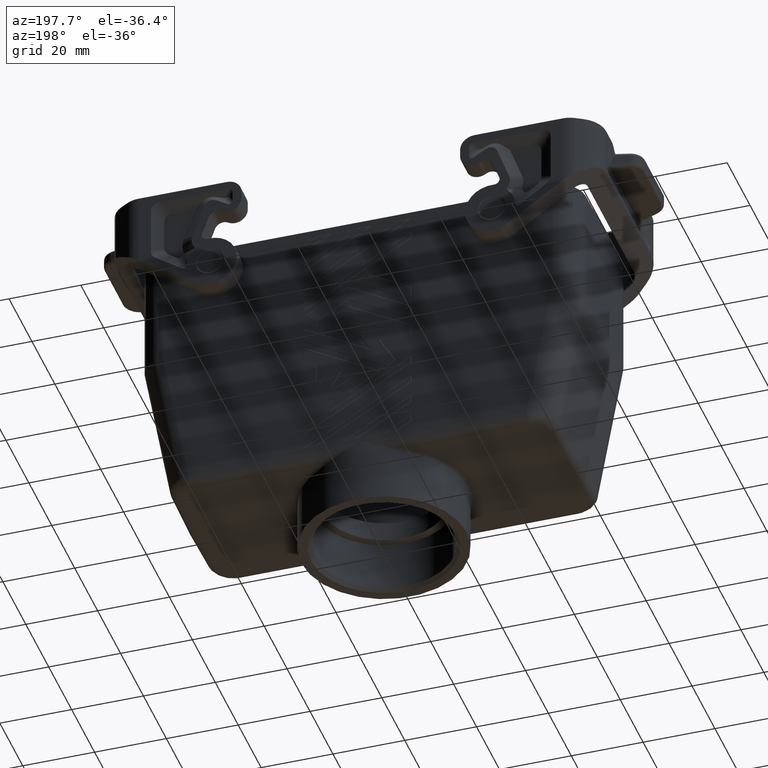
[diagram: clean part render]
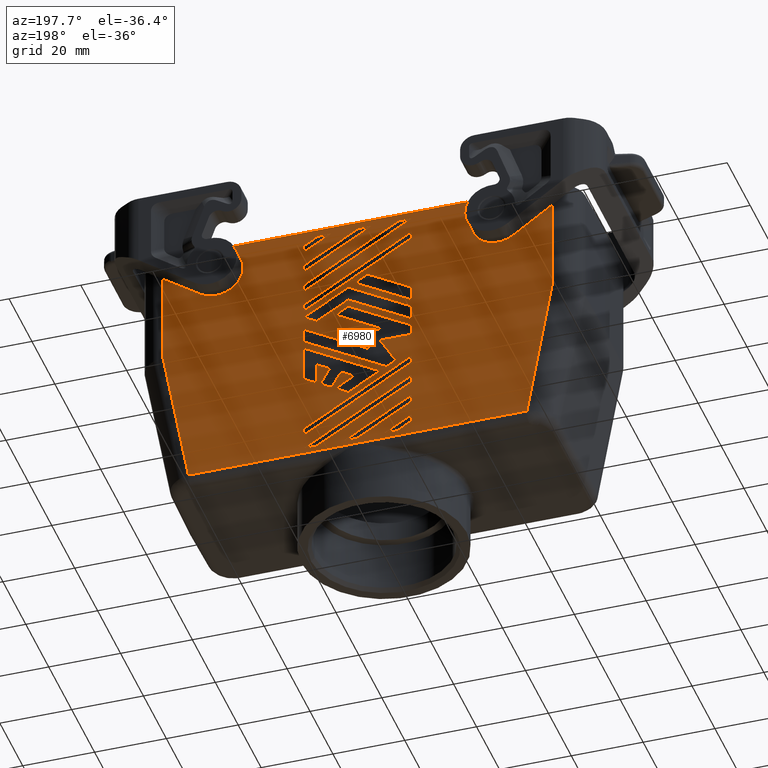
[diagram: same view with one face highlighted and labeled with its STEP entity id]
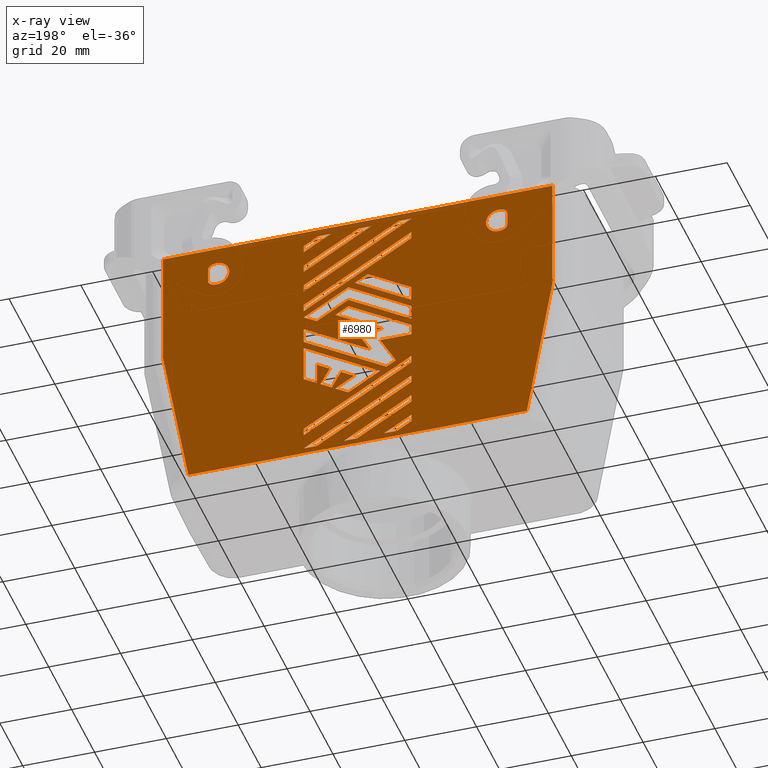
[diagram: x-ray of the same camera — body ghosted, the highlighted face saturated]
A machine part, auxiliary view. The second image highlights one B-rep face of the part: STEP entity #6980.
The next image is the same camera in x-ray: the body ghosted, the highlighted face saturated — about 0% of this face is hidden behind the body in this view.
In plain terms, the highlighted planar face has unit normal (0, 1, 0).
Its self-contained STEP definition (entity closure, byte-faithful):
#10=CARTESIAN_POINT('',(-46.060861035122,64.667153,-23.));
#20=DIRECTION('',(0.,0.,-1.));
#30=DIRECTION('',(-1.,0.,0.));
#40=AXIS2_PLACEMENT_3D('',#10,#20,#30);
#50=PLANE('',#40);
#60=CARTESIAN_POINT('',(45.6034979824379,71.0426686568409,-23.));
#70=DIRECTION('',(-0.866025403784436,0.500000000000004,0.));
#80=VECTOR('',#70,1.);
#90=LINE('',#60,#80);
#100=CARTESIAN_POINT('',(12.2534979824391,90.2973001343145,-23.));
#110=VERTEX_POINT('',#100);
#120=CARTESIAN_POINT('',(4.65349798243921,94.6851621801556,-23.));
#130=VERTEX_POINT('',#120);
#140=EDGE_CURVE('',#110,#130,#90,.T.);
#150=ORIENTED_EDGE('',*,*,#140,.F.);
#160=CARTESIAN_POINT('',(45.6034979824379,94.6851621801556,-23.));
#170=DIRECTION('',(-1.,0.,0.));
#180=VECTOR('',#170,1.);
#190=LINE('',#160,#180);
#200=CARTESIAN_POINT('',(8.25349798243925,94.6851621801557,-23.));
#210=VERTEX_POINT('',#200);
#220=EDGE_CURVE('',#210,#130,#190,.T.);
#230=ORIENTED_EDGE('',*,*,#220,.T.);
#240=CARTESIAN_POINT('',(45.6034979824379,73.1211296259237,-23.));
#250=DIRECTION('',(0.866025403784437,-0.500000000000004,0.));
#260=VECTOR('',#250,1.);
#270=LINE('',#240,#260);
#280=CARTESIAN_POINT('',(12.2534979824391,92.3757611033972,-23.));
#290=VERTEX_POINT('',#280);
#300=EDGE_CURVE('',#210,#290,#270,.T.);
#310=ORIENTED_EDGE('',*,*,#300,.F.);
#320=CARTESIAN_POINT('',(12.2534979824391,55.8098842073269,-23.));
#330=DIRECTION('',(0.,1.,0.));
#340=VECTOR('',#330,1.);
#350=LINE('',#320,#340);
#360=EDGE_CURVE('',#110,#290,#350,.T.);
#370=ORIENTED_EDGE('',*,*,#360,.T.);
#380=EDGE_LOOP('',(#370,#310,#230,#150));
#390=FACE_BOUND('',#380,.T.);
#400=CARTESIAN_POINT('',(45.6034979824379,25.6340699850763,-23.));
#410=DIRECTION('',(1.,0.,0.));
#420=VECTOR('',#410,1.);
#430=LINE('',#400,#420);
#440=CARTESIAN_POINT('',(8.65349798243908,25.6340699850763,-23.));
#450=VERTEX_POINT('',#440);
#460=CARTESIAN_POINT('',(12.253497982439,25.6340699850763,-23.));
#470=VERTEX_POINT('',#460);
#480=EDGE_CURVE('',#450,#470,#430,.T.);
#490=ORIENTED_EDGE('',*,*,#480,.T.);
#500=CARTESIAN_POINT('',(45.6034979824379,4.30097753852019,-23.));
#510=DIRECTION('',(-0.866025403784437,0.500000000000002,0.));
#520=VECTOR('',#510,1.);
#530=LINE('',#500,#520);
#540=CARTESIAN_POINT('',(-17.7465020175611,40.8761170916827,-23.));
#550=VERTEX_POINT('',#540);
#560=EDGE_CURVE('',#450,#550,#530,.T.);
#570=ORIENTED_EDGE('',*,*,#560,.F.);
#580=CARTESIAN_POINT('',(-17.7465020175611,55.8098842073269,-23.));
#590=DIRECTION('',(0.,-1.,0.));
#600=VECTOR('',#590,1.);
#610=LINE('',#580,#600);
#620=CARTESIAN_POINT('',(-17.7465020175611,42.9545780607653,-23.));
#630=VERTEX_POINT('',#620);
#640=EDGE_CURVE('',#630,#550,#610,.T.);
#650=ORIENTED_EDGE('',*,*,#640,.T.);
#660=CARTESIAN_POINT('',(45.6034979824379,6.37943850760283,-23.));
#670=DIRECTION('',(0.866025403784437,-0.500000000000003,0.));
#680=VECTOR('',#670,1.);
#690=LINE('',#660,#680);
#700=EDGE_CURVE('',#630,#470,#690,.T.);
#710=ORIENTED_EDGE('',*,*,#700,.F.);
#720=EDGE_LOOP('',(#710,#650,#570,#490));
#730=FACE_BOUND('',#720,.T.);
#740=CARTESIAN_POINT('',(45.6034979824379,79.9915978292796,-23.));
#750=DIRECTION('',(-0.866025403784434,-0.500000000000008,0.));
#760=VECTOR('',#750,1.);
#770=LINE('',#740,#760);
#780=CARTESIAN_POINT('',(12.2534979824392,60.7369663518059,-23.));
#790=VERTEX_POINT('',#780);
#800=CARTESIAN_POINT('',(-5.34650201756084,50.5756016140682,-23.));
#810=VERTEX_POINT('',#800);
#820=EDGE_CURVE('',#790,#810,#770,.T.);
#830=ORIENTED_EDGE('',*,*,#820,.F.);
#840=CARTESIAN_POINT('',(45.6034979824379,21.1596053988555,-23.));
#850=DIRECTION('',(-0.866025403784424,0.500000000000025,0.));
#860=VECTOR('',#850,1.);
#870=LINE('',#840,#860);
#880=CARTESIAN_POINT('',(-8.94650201756087,52.654062583151,-23.));
#890=VERTEX_POINT('',#880);
#900=EDGE_CURVE('',#810,#890,#870,.T.);
#910=ORIENTED_EDGE('',*,*,#900,.F.);
#920=CARTESIAN_POINT('',(45.6034979824379,84.1485197674442,-23.));
#930=DIRECTION('',(0.86602540378444,0.499999999999999,0.));
#940=VECTOR('',#930,1.);
#950=LINE('',#920,#940);
#960=CARTESIAN_POINT('',(4.05349798243933,60.1596160826162,-23.));
#970=VERTEX_POINT('',#960);
#980=EDGE_CURVE('',#890,#970,#950,.T.);
#990=ORIENTED_EDGE('',*,*,#980,.F.);
#1000=CARTESIAN_POINT('',(45.6034979824379,60.1596160826162,-23.));
#1010=DIRECTION('',(-1.,-1.04491578788246E-15,0.));
#1020=VECTOR('',#1010,1.);
#1030=LINE('',#1000,#1020);
#1040=CARTESIAN_POINT('',(-2.74650201756093,60.1596160826162,-23.));
#1050=VERTEX_POINT('',#1040);
#1060=EDGE_CURVE('',#970,#1050,#1030,.T.);
#1070=ORIENTED_EDGE('',*,*,#1060,.F.);
#1080=CARTESIAN_POINT('',(-5.25782088666189,55.8098842073269,-23.));
#1090=DIRECTION('',(0.499999999999997,0.86602540378444,0.));
#1100=VECTOR('',#1090,1.);
#1110=LINE('',#1080,#1100);
#1120=CARTESIAN_POINT('',(0.653497982439163,66.0485888283506,-23.));
#1130=VERTEX_POINT('',#1120);
#1140=EDGE_CURVE('',#1050,#1130,#1110,.T.);
#1150=ORIENTED_EDGE('',*,*,#1140,.F.);
#1160=CARTESIAN_POINT('',(45.6034979824379,92.0004834284237,-23.));
#1170=DIRECTION('',(-0.866025403784438,-0.500000000000001,0.));
#1180=VECTOR('',#1170,1.);
#1190=LINE('',#1160,#1180);
#1200=CARTESIAN_POINT('',(-17.746502017561,55.4253438752614,-23.));
#1210=VERTEX_POINT('',#1200);
#1220=EDGE_CURVE('',#1130,#1210,#1190,.T.);
#1230=ORIENTED_EDGE('',*,*,#1220,.F.);
#1240=CARTESIAN_POINT('',(-17.746502017561,55.8098842073269,-23.));
#1250=DIRECTION('',(0.,-1.,0.));
#1260=VECTOR('',#1250,1.);
#1270=LINE('',#1240,#1260);
#1280=CARTESIAN_POINT('',(-17.746502017561,59.5822658134266,-23.));
#1290=VERTEX_POINT('',#1280);
#1300=EDGE_CURVE('',#1290,#1210,#1270,.T.);
#1310=ORIENTED_EDGE('',*,*,#1300,.T.);
#1320=CARTESIAN_POINT('',(45.6034979824379,96.1574053665885,-23.));
#1330=DIRECTION('',(0.86602540378444,0.499999999999997,0.));
#1340=VECTOR('',#1330,1.);
#1350=LINE('',#1320,#1340);
#1360=CARTESIAN_POINT('',(5.25349798243919,72.861322004788,-23.));
#1370=VERTEX_POINT('',#1360);
#1380=EDGE_CURVE('',#1290,#1370,#1350,.T.);
#1390=ORIENTED_EDGE('',*,*,#1380,.F.);
#1400=CARTESIAN_POINT('',(45.6034979824379,49.5652386429886,-23.));
#1410=DIRECTION('',(0.866025403784451,-0.499999999999979,0.));
#1420=VECTOR('',#1410,1.);
#1430=LINE('',#1400,#1420);
#1440=CARTESIAN_POINT('',(7.87118943606306,71.349997139383,-23.));
#1450=VERTEX_POINT('',#1440);
#1460=EDGE_CURVE('',#1370,#1450,#1430,.T.);
#1470=ORIENTED_EDGE('',*,*,#1460,.F.);
#1480=CARTESIAN_POINT('',(-1.10089894849622,55.8098842073269,-23.));
#1490=DIRECTION('',(-0.499999999999979,-0.866025403784451,0.));
#1500=VECTOR('',#1490,1.);
#1510=LINE('',#1480,#1500);
#1520=CARTESIAN_POINT('',(3.48888088968715,63.7596160826162,-23.));
#1530=VERTEX_POINT('',#1520);
#1540=EDGE_CURVE('',#1450,#1530,#1510,.T.);
#1550=ORIENTED_EDGE('',*,*,#1540,.F.);
#1560=CARTESIAN_POINT('',(45.6034979824379,63.7596160826162,-23.));
#1570=DIRECTION('',(1.,0.,0.));
#1580=VECTOR('',#1570,1.);
#1590=LINE('',#1560,#1580);
#1600=CARTESIAN_POINT('',(12.2534979824392,63.7596160826162,-23.));
#1610=VERTEX_POINT('',#1600);
#1620=EDGE_CURVE('',#1530,#1610,#1590,.T.);
#1630=ORIENTED_EDGE('',*,*,#1620,.F.);
#1640=CARTESIAN_POINT('',(12.2534979824392,55.8098842073269,-23.));
#1650=DIRECTION('',(0.,1.,0.));
#1660=VECTOR('',#1650,1.);
#1670=LINE('',#1640,#1660);
#1680=EDGE_CURVE('',#790,#1610,#1670,.T.);
#1690=ORIENTED_EDGE('',*,*,#1680,.T.);
#1700=EDGE_LOOP('',(#1690,#1630,#1550,#1470,#1390,#1310,#1230,#1150,
#1070,#990,#910,#830));
#1710=FACE_BOUND('',#1700,.T.);
#1720=CARTESIAN_POINT('',(45.6034979824379,94.6851621801556,-23.));
#1730=DIRECTION('',(-1.,0.,0.));
#1740=VECTOR('',#1730,1.);
#1750=LINE('',#1720,#1740);
#1760=CARTESIAN_POINT('',(-2.94650201756095,94.6851621801556,-23.));
#1770=VERTEX_POINT('',#1760);
#1780=CARTESIAN_POINT('',(-6.5465020175612,94.6851621801556,-23.));
#1790=VERTEX_POINT('',#1780);
#1800=EDGE_CURVE('',#1770,#1790,#1750,.T.);
#1810=ORIENTED_EDGE('',*,*,#1800,.T.);
#1820=CARTESIAN_POINT('',(45.6034979824379,66.6548066109999,-23.));
#1830=DIRECTION('',(0.866025403784438,-0.500000000000001,0.));
#1840=VECTOR('',#1830,1.);
#1850=LINE('',#1820,#1840);
#1860=CARTESIAN_POINT('',(12.2534979824391,85.9094380884733,-23.));
#1870=VERTEX_POINT('',#1860);
#1880=EDGE_CURVE('',#1770,#1870,#1850,.T.);
#1890=ORIENTED_EDGE('',*,*,#1880,.F.);
#1900=CARTESIAN_POINT('',(12.2534979824391,55.8098842073269,-23.));
#1910=DIRECTION('',(0.,1.,0.));
#1920=VECTOR('',#1910,1.);
#1930=LINE('',#1900,#1920);
#1940=CARTESIAN_POINT('',(12.2534979824391,83.8309771193906,-23.));
#1950=VERTEX_POINT('',#1940);
#1960=EDGE_CURVE('',#1950,#1870,#1930,.T.);
#1970=ORIENTED_EDGE('',*,*,#1960,.T.);
#1980=CARTESIAN_POINT('',(45.6034979824379,64.5763456419175,-23.));
#1990=DIRECTION('',(-0.866025403784441,0.499999999999996,0.));
#2000=VECTOR('',#1990,1.);
#2010=LINE('',#1980,#2000);
#2020=EDGE_CURVE('',#1950,#1790,#2010,.T.);
#2030=ORIENTED_EDGE('',*,*,#2020,.F.);
#2040=EDGE_LOOP('',(#2030,#1970,#1890,#1810));
#2050=FACE_BOUND('',#2040,.T.);
#2060=CARTESIAN_POINT('',(-17.746502017561,55.8098842073269,-23.));
#2070=DIRECTION('',(0.,-1.,0.));
#2080=VECTOR('',#2070,1.);
#2090=LINE('',#2060,#2080);
#2100=CARTESIAN_POINT('',(-17.746502017561,49.4209010756891,-23.));
#2110=VERTEX_POINT('',#2100);
#2120=CARTESIAN_POINT('',(-17.746502017561,47.3424401066064,-23.));
#2130=VERTEX_POINT('',#2120);
#2140=EDGE_CURVE('',#2110,#2130,#2090,.T.);
#2150=ORIENTED_EDGE('',*,*,#2140,.T.);
#2160=CARTESIAN_POINT('',(45.6034979824379,12.8457615225267,-23.));
#2170=DIRECTION('',(0.866025403784437,-0.500000000000002,0.));
#2180=VECTOR('',#2170,1.);
#2190=LINE('',#2160,#2180);
#2200=CARTESIAN_POINT('',(12.2534979824393,32.100393,-23.));
#2210=VERTEX_POINT('',#2200);
#2220=EDGE_CURVE('',#2110,#2210,#2190,.T.);
#2230=ORIENTED_EDGE('',*,*,#2220,.F.);
#2240=CARTESIAN_POINT('',(12.2534979824393,55.8098842073269,-23.));
#2250=DIRECTION('',(0.,1.,0.));
#2260=VECTOR('',#2250,1.);
#2270=LINE('',#2240,#2260);
#2280=CARTESIAN_POINT('',(12.2534979824393,30.0219320309173,-23.));
#2290=VERTEX_POINT('',#2280);
#2300=EDGE_CURVE('',#2290,#2210,#2270,.T.);
#2310=ORIENTED_EDGE('',*,*,#2300,.T.);
#2320=CARTESIAN_POINT('',(45.6034979824379,10.767300553444,-23.));
#2330=DIRECTION('',(-0.866025403784437,0.500000000000002,0.));
#2340=VECTOR('',#2330,1.);
#2350=LINE('',#2320,#2340);
#2360=EDGE_CURVE('',#2290,#2130,#2350,.T.);
#2370=ORIENTED_EDGE('',*,*,#2360,.F.);
#2380=EDGE_LOOP('',(#2370,#2310,#2230,#2150));
#2390=FACE_BOUND('',#2380,.T.);
#2400=CARTESIAN_POINT('',(45.6034979824379,53.7221605811523,-23.));
#2410=DIRECTION('',(0.866025403784439,-0.5,0.));
#2420=VECTOR('',#2410,1.);
#2430=LINE('',#2400,#2420);
#2440=CARTESIAN_POINT('',(-17.746502017561,90.2973001343145,-23.));
#2450=VERTEX_POINT('',#2440);
#2460=CARTESIAN_POINT('',(12.2534979824391,72.9767920586256,-23.));
#2470=VERTEX_POINT('',#2460);
#2480=EDGE_CURVE('',#2450,#2470,#2430,.T.);
#2490=ORIENTED_EDGE('',*,*,#2480,.F.);
#2500=CARTESIAN_POINT('',(12.2534979824392,55.8098842073269,-23.));
#2510=DIRECTION('',(0.,1.,0.));
#2520=VECTOR('',#2510,1.);
#2530=LINE('',#2500,#2520);
#2540=CARTESIAN_POINT('',(12.2534979824392,70.898331089543,-23.));
#2550=VERTEX_POINT('',#2540);
#2560=EDGE_CURVE('',#2550,#2470,#2530,.T.);
#2570=ORIENTED_EDGE('',*,*,#2560,.T.);
#2580=CARTESIAN_POINT('',(45.6034979824379,51.6436996120697,-23.));
#2590=DIRECTION('',(-0.866025403784439,0.5,0.));
#2600=VECTOR('',#2590,1.);
#2610=LINE('',#2580,#2600);
#2620=CARTESIAN_POINT('',(-17.7465020175609,88.2188391652318,-23.));
#2630=VERTEX_POINT('',#2620);
#2640=EDGE_CURVE('',#2550,#2630,#2610,.T.);
#2650=ORIENTED_EDGE('',*,*,#2640,.F.);
#2660=CARTESIAN_POINT('',(-17.7465020175609,55.8098842073269,-23.));
#2670=DIRECTION('',(0.,-1.,0.));
#2680=VECTOR('',#2670,1.);
#2690=LINE('',#2660,#2680);
#2700=EDGE_CURVE('',#2450,#2630,#2690,.T.);
#2710=ORIENTED_EDGE('',*,*,#2700,.T.);
#2720=EDGE_LOOP('',(#2710,#2650,#2570,#2490));
#2730=FACE_BOUND('',#2720,.T.);
#2740=CARTESIAN_POINT('',(45.6034979824379,108.397231073403,-23.));
#2750=DIRECTION('',(0.866025403784471,0.499999999999945,0.));
#2760=VECTOR('',#2750,1.);
#2770=LINE('',#2740,#2760);
#2780=CARTESIAN_POINT('',(-17.746502017561,71.8220915202466,-23.));
#2790=VERTEX_POINT('',#2780);
#2800=CARTESIAN_POINT('',(-14.1465020175609,73.900552489329,-23.));
#2810=VERTEX_POINT('',#2800);
#2820=EDGE_CURVE('',#2790,#2810,#2770,.T.);
#2830=ORIENTED_EDGE('',*,*,#2820,.F.);
#2840=CARTESIAN_POINT('',(-14.146502017561,55.8098842073269,-23.));
#2850=DIRECTION('',(-1.47920206644892E-15,-1.,0.));
#2860=VECTOR('',#2850,1.);
#2870=LINE('',#2840,#2860);
#2880=CARTESIAN_POINT('',(-14.1465020175609,67.896109689757,-23.));
#2890=VERTEX_POINT('',#2880);
#2900=EDGE_CURVE('',#2810,#2890,#2870,.T.);
#2910=ORIENTED_EDGE('',*,*,#2900,.F.);
#2920=CARTESIAN_POINT('',(45.6034979824379,102.392788273836,-23.));
#2930=DIRECTION('',(0.866025403784439,0.499999999999999,0.));
#2940=VECTOR('',#2930,1.);
#2950=LINE('',#2920,#2940);
#2960=CARTESIAN_POINT('',(-10.5053477443729,69.998331089543,-23.));
#2970=VERTEX_POINT('',#2960);
#2980=EDGE_CURVE('',#2890,#2970,#2950,.T.);
#2990=ORIENTED_EDGE('',*,*,#2980,.F.);
#3000=CARTESIAN_POINT('',(-2.31364411754294,55.8098842073269,-23.));
#3010=DIRECTION('',(-0.49999999999999,0.866025403784444,0.));
#3020=VECTOR('',#3010,1.);
#3030=LINE('',#3000,#3020);
#3040=CARTESIAN_POINT('',(-13.1053477443728,74.501663189222,-23.));
#3050=VERTEX_POINT('',#3040);
#3060=EDGE_CURVE('',#2970,#3050,#3030,.T.);
#3070=ORIENTED_EDGE('',*,*,#3060,.F.);
#3080=CARTESIAN_POINT('',(45.6034979824379,108.397231073403,-23.));
#3090=DIRECTION('',(0.866025403784471,0.499999999999945,0.));
#3100=VECTOR('',#3090,1.);
#3110=LINE('',#3080,#3100);
#3120=CARTESIAN_POINT('',(-9.9876562907487,76.3016631892218,-23.));
#3130=VERTEX_POINT('',#3120);
#3140=EDGE_CURVE('',#3050,#3130,#3110,.T.);
#3150=ORIENTED_EDGE('',*,*,#3140,.F.);
#3160=CARTESIAN_POINT('',(1.84327782062226,55.8098842073269,-23.));
#3170=DIRECTION('',(0.499999999999988,-0.866025403784445,0.));
#3180=VECTOR('',#3170,1.);
#3190=LINE('',#3160,#3180);
#3200=CARTESIAN_POINT('',(-7.38765629074896,71.798331089543,-23.));
#3210=VERTEX_POINT('',#3200);
#3220=EDGE_CURVE('',#3130,#3210,#3190,.T.);
#3230=ORIENTED_EDGE('',*,*,#3220,.F.);
#3240=CARTESIAN_POINT('',(45.6034979824379,102.392788273836,-23.));
#3250=DIRECTION('',(0.866025403784439,0.499999999999999,0.));
#3260=VECTOR('',#3250,1.);
#3270=LINE('',#3240,#3260);
#3280=CARTESIAN_POINT('',(-3.74650201756063,73.9005524893292,-23.));
#3290=VERTEX_POINT('',#3280);
#3300=EDGE_CURVE('',#3210,#3290,#3270,.T.);
#3310=ORIENTED_EDGE('',*,*,#3300,.F.);
#3320=CARTESIAN_POINT('',(45.6034979824379,45.4083167048229,-23.));
#3330=DIRECTION('',(-0.866025403784445,0.499999999999989,0.));
#3340=VECTOR('',#3330,1.);
#3350=LINE('',#3320,#3340);
#3360=CARTESIAN_POINT('',(-8.94650201756025,76.902773889115,-23.));
#3370=VERTEX_POINT('',#3360);
#3380=EDGE_CURVE('',#3290,#3370,#3350,.T.);
#3390=ORIENTED_EDGE('',*,*,#3380,.F.);
#3400=CARTESIAN_POINT('',(45.6034979824379,108.397231073403,-23.));
#3410=DIRECTION('',(0.866025403784471,0.499999999999945,0.));
#3420=VECTOR('',#3410,1.);
#3430=LINE('',#3400,#3420);
#3440=CARTESIAN_POINT('',(-5.3465020175602,78.9812348581974,-23.));
#3450=VERTEX_POINT('',#3440);
#3460=EDGE_CURVE('',#3370,#3450,#3430,.T.);
#3470=ORIENTED_EDGE('',*,*,#3460,.F.);
#3480=CARTESIAN_POINT('',(45.6034979824379,49.5652386429886,-23.));
#3490=DIRECTION('',(0.866025403784451,-0.499999999999979,0.));
#3500=VECTOR('',#3490,1.);
#3510=LINE('',#3480,#3500);
#3520=CARTESIAN_POINT('',(3.45349798243895,73.9005524893294,-23.));
#3530=VERTEX_POINT('',#3520);
#3540=EDGE_CURVE('',#3450,#3530,#3510,.T.);
#3550=ORIENTED_EDGE('',*,*,#3540,.F.);
#3560=CARTESIAN_POINT('',(45.6034979824379,98.2358663356725,-23.));
#3570=DIRECTION('',(-0.86602540378443,-0.500000000000014,0.));
#3580=VECTOR('',#3570,1.);
#3590=LINE('',#3560,#3580);
#3600=CARTESIAN_POINT('',(-17.746502017561,61.6607267825089,-23.));
#3610=VERTEX_POINT('',#3600);
#3620=EDGE_CURVE('',#3530,#3610,#3590,.T.);
#3630=ORIENTED_EDGE('',*,*,#3620,.F.);
#3640=CARTESIAN_POINT('',(-17.746502017561,55.8098842073269,-23.));
#3650=DIRECTION('',(0.,-1.,0.));
#3660=VECTOR('',#3650,1.);
#3670=LINE('',#3640,#3660);
#3680=EDGE_CURVE('',#2790,#3610,#3670,.T.);
#3690=ORIENTED_EDGE('',*,*,#3680,.T.);
#3700=EDGE_LOOP('',(#3690,#3630,#3550,#3470,#3390,#3310,#3230,#3150,
#3070,#2990,#2910,#2830));
#3710=FACE_BOUND('',#3700,.T.);
#3720=CARTESIAN_POINT('',(45.6034979824379,-2.16534547640369,-23.));
#3730=DIRECTION('',(-0.866025403784437,0.500000000000003,0.));
#3740=VECTOR('',#3730,1.);
#3750=LINE('',#3720,#3740);
#3760=CARTESIAN_POINT('',(-2.5465020175609,25.6340699850763,-23.));
#3770=VERTEX_POINT('',#3760);
#3780=CARTESIAN_POINT('',(-17.7465020175611,34.4097940767588,-23.));
#3790=VERTEX_POINT('',#3780);
#3800=EDGE_CURVE('',#3770,#3790,#3750,.T.);
#3810=ORIENTED_EDGE('',*,*,#3800,.F.);
#3820=CARTESIAN_POINT('',(-17.7465020175611,55.8098842073269,-23.));
#3830=DIRECTION('',(0.,-1.,0.));
#3840=VECTOR('',#3830,1.);
#3850=LINE('',#3820,#3840);
#3860=CARTESIAN_POINT('',(-17.7465020175611,36.4882550458415,-23.));
#3870=VERTEX_POINT('',#3860);
#3880=EDGE_CURVE('',#3870,#3790,#3850,.T.);
#3890=ORIENTED_EDGE('',*,*,#3880,.T.);
#3900=CARTESIAN_POINT('',(45.6034979824379,-0.086884507320967,-23.));
#3910=DIRECTION('',(0.866025403784437,-0.500000000000002,0.));
#3920=VECTOR('',#3910,1.);
#3930=LINE('',#3900,#3920);
#3940=CARTESIAN_POINT('',(1.05349798243913,25.6340699850763,-23.));
#3950=VERTEX_POINT('',#3940);
#3960=EDGE_CURVE('',#3870,#3950,#3930,.T.);
#3970=ORIENTED_EDGE('',*,*,#3960,.F.);
#3980=CARTESIAN_POINT('',(45.6034979824379,25.6340699850763,-23.));
#3990=DIRECTION('',(1.,0.,0.));
#4000=VECTOR('',#3990,1.);
#4010=LINE('',#3980,#4000);
#4020=EDGE_CURVE('',#3770,#3950,#4010,.T.);
#4030=ORIENTED_EDGE('',*,*,#4020,.T.);
#4040=EDGE_LOOP('',(#4030,#3970,#3890,#3810));
#4050=FACE_BOUND('',#4040,.T.);
#4060=CARTESIAN_POINT('',(-42.8965020175609,33.4864501099492,-23.));
#4070=DIRECTION('',(0.,0.,1.));
#4080=DIRECTION('',(1.,0.,0.));
#4090=AXIS2_PLACEMENT_3D('',#4060,#4070,#4080);
#4100=CIRCLE('',#4090,1.5);
#4110=CARTESIAN_POINT('',(-43.5715020175609,34.825992942411,-23.));
#4120=VERTEX_POINT('',#4110);
#4130=CARTESIAN_POINT('',(-44.3965020175609,33.4864501099492,-23.));
#4140=VERTEX_POINT('',#4130);
#4150=EDGE_CURVE('',#4120,#4140,#4100,.T.);
#4160=ORIENTED_EDGE('',*,*,#4150,.T.);
#4170=CARTESIAN_POINT('',(-41.9965020175609,31.700393,-23.));
#4180=DIRECTION('',(0.,0.,1.));
#4190=DIRECTION('',(1.,1.22464679914735E-16,0.));
#4200=AXIS2_PLACEMENT_3D('',#4170,#4180,#4190);
#4210=CIRCLE('',#4200,3.5);
#4220=CARTESIAN_POINT('',(-38.4965020175609,31.700393,-23.));
#4230=VERTEX_POINT('',#4220);
#4240=EDGE_CURVE('',#4230,#4120,#4210,.T.);
#4250=ORIENTED_EDGE('',*,*,#4240,.T.);
#4260=CARTESIAN_POINT('',(-43.5715020175609,28.5747930575889,-23.));
#4270=VERTEX_POINT('',#4260);
#4280=EDGE_CURVE('',#4270,#4230,#4210,.T.);
#4290=ORIENTED_EDGE('',*,*,#4280,.T.);
#4300=CARTESIAN_POINT('',(-42.8965020175609,29.9143358900508,-23.));
#4310=DIRECTION('',(0.,0.,1.));
#4320=DIRECTION('',(1.,0.,0.));
#4330=AXIS2_PLACEMENT_3D('',#4300,#4310,#4320);
#4340=CIRCLE('',#4330,1.5);
#4350=CARTESIAN_POINT('',(-44.3965020175609,29.9143358900508,-23.));
#4360=VERTEX_POINT('',#4350);
#4370=EDGE_CURVE('',#4360,#4270,#4340,.T.);
#4380=ORIENTED_EDGE('',*,*,#4370,.T.);
#4390=CARTESIAN_POINT('',(-44.3965020175609,55.8098842073269,-23.));
#4400=DIRECTION('',(-1.74320263108565E-16,-1.,0.));
#4410=VECTOR('',#4400,1.);
#4420=LINE('',#4390,#4410);
#4430=EDGE_CURVE('',#4140,#4360,#4420,.T.);
#4440=ORIENTED_EDGE('',*,*,#4430,.T.);
#4450=EDGE_LOOP('',(#4440,#4380,#4290,#4250,#4160));
#4460=FACE_BOUND('',#4450,.T.);
#4470=CARTESIAN_POINT('',(37.4034979824391,29.9143358900508,-23.));
#4480=DIRECTION('',(0.,0.,-1.));
#4490=DIRECTION('',(-1.,0.,0.));
#4500=AXIS2_PLACEMENT_3D('',#4470,#4480,#4490);
#4510=CIRCLE('',#4500,1.5);
#4520=CARTESIAN_POINT('',(38.9034979824391,29.9143358900508,-23.));
#4530=VERTEX_POINT('',#4520);
#4540=CARTESIAN_POINT('',(38.0784979824391,28.5747930575889,-23.));
#4550=VERTEX_POINT('',#4540);
#4560=EDGE_CURVE('',#4530,#4550,#4510,.T.);
#4570=ORIENTED_EDGE('',*,*,#4560,.F.);
#4580=CARTESIAN_POINT('',(36.5034979824391,31.700393,-23.));
#4590=DIRECTION('',(0.,0.,-1.));
#4600=DIRECTION('',(-1.,1.22464679914735E-16,0.));
#4610=AXIS2_PLACEMENT_3D('',#4580,#4590,#4600);
#4620=CIRCLE('',#4610,3.5);
#4630=CARTESIAN_POINT('',(33.0034979824391,31.700393,-23.));
#4640=VERTEX_POINT('',#4630);
#4650=EDGE_CURVE('',#4550,#4640,#4620,.T.);
#4660=ORIENTED_EDGE('',*,*,#4650,.F.);
#4670=CARTESIAN_POINT('',(38.0784979824391,34.8259929424111,-23.));
#4680=VERTEX_POINT('',#4670);
#4690=EDGE_CURVE('',#4640,#4680,#4620,.T.);
#4700=ORIENTED_EDGE('',*,*,#4690,.F.);
#4710=CARTESIAN_POINT('',(37.4034979824391,33.4864501099492,-23.));
#4720=DIRECTION('',(0.,0.,-1.));
#4730=DIRECTION('',(-1.,0.,0.));
#4740=AXIS2_PLACEMENT_3D('',#4710,#4720,#4730);
#4750=CIRCLE('',#4740,1.5);
#4760=CARTESIAN_POINT('',(38.9034979824391,33.4864501099492,-23.));
#4770=VERTEX_POINT('',#4760);
#4780=EDGE_CURVE('',#4680,#4770,#4750,.T.);
#4790=ORIENTED_EDGE('',*,*,#4780,.F.);
#4800=CARTESIAN_POINT('',(38.9034979824391,55.8098842073269,-23.));
#4810=DIRECTION('',(-1.39456210486852E-15,1.,0.));
#4820=VECTOR('',#4810,1.);
#4830=LINE('',#4800,#4820);
#4840=EDGE_CURVE('',#4530,#4770,#4830,.T.);
#4850=ORIENTED_EDGE('',*,*,#4840,.T.);
#4860=EDGE_LOOP('',(#4850,#4790,#4700,#4660,#4570));
#4870=FACE_BOUND('',#4860,.T.);
#4880=CARTESIAN_POINT('',(45.6034979824379,-8.63166849132719,-23.));
#4890=DIRECTION('',(-0.866025403784439,0.499999999999999,0.));
#4900=VECTOR('',#4890,1.);
#4910=LINE('',#4880,#4900);
#4920=CARTESIAN_POINT('',(-13.746502017561,25.6340699850764,-23.));
#4930=VERTEX_POINT('',#4920);
#4940=CARTESIAN_POINT('',(-17.7465020175611,27.9434710618349,-23.));
#4950=VERTEX_POINT('',#4940);
#4960=EDGE_CURVE('',#4930,#4950,#4910,.T.);
#4970=ORIENTED_EDGE('',*,*,#4960,.F.);
#4980=CARTESIAN_POINT('',(-17.7465020175611,55.8098842073269,-23.));
#4990=DIRECTION('',(0.,-1.,0.));
#5000=VECTOR('',#4990,1.);
#5010=LINE('',#4980,#5000);
#5020=CARTESIAN_POINT('',(-17.7465020175611,30.0219320309177,-23.));
#5030=VERTEX_POINT('',#5020);
#5040=EDGE_CURVE('',#5030,#4950,#5010,.T.);
#5050=ORIENTED_EDGE('',*,*,#5040,.T.);
#5060=CARTESIAN_POINT('',(45.6034979824379,-6.55320752224473,-23.));
#5070=DIRECTION('',(0.866025403784438,-0.500000000000002,0.));
#5080=VECTOR('',#5070,1.);
#5090=LINE('',#5060,#5080);
#5100=CARTESIAN_POINT('',(-10.1465020175608,25.6340699850764,-23.));
#5110=VERTEX_POINT('',#5100);
#5120=EDGE_CURVE('',#5030,#5110,#5090,.T.);
#5130=ORIENTED_EDGE('',*,*,#5120,.F.);
#5140=CARTESIAN_POINT('',(45.6034979824379,25.6340699850764,-23.));
#5150=DIRECTION('',(1.,0.,0.));
#5160=VECTOR('',#5150,1.);
#5170=LINE('',#5140,#5160);
#5180=EDGE_CURVE('',#4930,#5110,#5170,.T.);
#5190=ORIENTED_EDGE('',*,*,#5180,.T.);
#5200=EDGE_LOOP('',(#5190,#5130,#5050,#4970));
#5210=FACE_BOUND('',#5200,.T.);
#5220=CARTESIAN_POINT('',(12.2534979824393,55.8098842073269,-23.));
#5230=DIRECTION('',(0.,1.,0.));
#5240=VECTOR('',#5230,1.);
#5250=LINE('',#5220,#5240);
#5260=CARTESIAN_POINT('',(12.2534979824393,48.2662005373099,-23.));
#5270=VERTEX_POINT('',#5260);
#5280=CARTESIAN_POINT('',(12.2534979824393,52.4231224754751,-23.));
#5290=VERTEX_POINT('',#5280);
#5300=EDGE_CURVE('',#5270,#5290,#5250,.T.);
#5310=ORIENTED_EDGE('',*,*,#5300,.T.);
#5320=CARTESIAN_POINT('',(45.6034979824379,67.5208320147825,-23.));
#5330=DIRECTION('',(-0.866025403784446,-0.499999999999987,0.));
#5340=VECTOR('',#5330,1.);
#5350=LINE('',#5320,#5340);
#5360=CARTESIAN_POINT('',(0.053497982439076,41.2225272531966,-23.));
#5370=VERTEX_POINT('',#5360);
#5380=EDGE_CURVE('',#5270,#5370,#5350,.T.);
#5390=ORIENTED_EDGE('',*,*,#5380,.F.);
#5400=CARTESIAN_POINT('',(45.6034979824379,14.9242224916127,-23.));
#5410=DIRECTION('',(-0.866025403784462,0.499999999999959,0.));
#5420=VECTOR('',#5410,1.);
#5430=LINE('',#5400,#5420);
#5440=CARTESIAN_POINT('',(-3.54650201756095,43.300988222279,-23.));
#5450=VERTEX_POINT('',#5440);
#5460=EDGE_CURVE('',#5370,#5450,#5430,.T.);
#5470=ORIENTED_EDGE('',*,*,#5460,.F.);
#5480=CARTESIAN_POINT('',(45.6034979824379,71.6777539529482,-23.));
#5490=DIRECTION('',(0.866025403784441,0.499999999999996,0.));
#5500=VECTOR('',#5490,1.);
#5510=LINE('',#5480,#5500);
#5520=EDGE_CURVE('',#5450,#5290,#5510,.T.);
#5530=ORIENTED_EDGE('',*,*,#5520,.F.);
#5540=EDGE_LOOP('',(#5530,#5470,#5390,#5310));
#5550=FACE_BOUND('',#5540,.T.);
#5560=CARTESIAN_POINT('',(12.2534979824391,55.8098842073269,-23.));
#5570=DIRECTION('',(0.,1.,0.));
#5580=VECTOR('',#5570,1.);
#5590=LINE('',#5560,#5580);
#5600=CARTESIAN_POINT('',(12.2534979824391,77.3646541044668,-23.));
#5610=VERTEX_POINT('',#5600);
#5620=CARTESIAN_POINT('',(12.2534979824391,79.4431150735495,-23.));
#5630=VERTEX_POINT('',#5620);
#5640=EDGE_CURVE('',#5610,#5630,#5590,.T.);
#5650=ORIENTED_EDGE('',*,*,#5640,.T.);
#5660=CARTESIAN_POINT('',(45.6034979824379,58.1100226269934,-23.));
#5670=DIRECTION('',(-0.866025403784438,0.500000000000001,0.));
#5680=VECTOR('',#5670,1.);
#5690=LINE('',#5660,#5680);
#5700=CARTESIAN_POINT('',(-17.7465020175609,94.6851621801557,-23.));
#5710=VERTEX_POINT('',#5700);
#5720=EDGE_CURVE('',#5610,#5710,#5690,.T.);
#5730=ORIENTED_EDGE('',*,*,#5720,.F.);
#5740=CARTESIAN_POINT('',(45.6034979824379,94.6851621801557,-23.));
#5750=DIRECTION('',(-1.,0.,0.));
#5760=VECTOR('',#5750,1.);
#5770=LINE('',#5740,#5760);
#5780=CARTESIAN_POINT('',(-14.146502017561,94.6851621801557,-23.));
#5790=VERTEX_POINT('',#5780);
#5800=EDGE_CURVE('',#5790,#5710,#5770,.T.);
#5810=ORIENTED_EDGE('',*,*,#5800,.T.);
#5820=CARTESIAN_POINT('',(45.6034979824379,60.1884835960761,-23.));
#5830=DIRECTION('',(0.866025403784439,-0.5,0.));
#5840=VECTOR('',#5830,1.);
#5850=LINE('',#5820,#5840);
#5860=EDGE_CURVE('',#5790,#5630,#5850,.T.);
#5870=ORIENTED_EDGE('',*,*,#5860,.F.);
#5880=EDGE_LOOP('',(#5870,#5810,#5730,#5650));
#5890=FACE_BOUND('',#5880,.T.);
#5900=CARTESIAN_POINT('',(45.528497982438,88.0312003277387,-23.));
#5910=DIRECTION('',(0.866025403784474,0.499999999999938,0.));
#5920=VECTOR('',#5910,1.);
#5930=LINE('',#5900,#5920);
#5940=CARTESIAN_POINT('',(-17.7465020175618,51.4993620447713,-23.));
#5950=VERTEX_POINT('',#5940);
#5960=CARTESIAN_POINT('',(-14.146502017561,53.5778230138541,-23.));
#5970=VERTEX_POINT('',#5960);
#5980=EDGE_CURVE('',#5950,#5970,#5930,.T.);
#5990=ORIENTED_EDGE('',*,*,#5980,.F.);
#6000=CARTESIAN_POINT('',(45.6034979824379,19.0811444297769,-23.));
#6010=DIRECTION('',(0.866025403784453,-0.499999999999976,0.));
#6020=VECTOR('',#6010,1.);
#6030=LINE('',#6000,#6020);
#6040=CARTESIAN_POINT('',(-5.34650201756091,48.4971406449858,-23.));
#6050=VERTEX_POINT('',#6040);
#6060=EDGE_CURVE('',#5970,#6050,#6030,.T.);
#6070=ORIENTED_EDGE('',*,*,#6060,.F.);
#6080=CARTESIAN_POINT('',(45.6034979824379,77.913136860196,-23.));
#6090=DIRECTION('',(0.866025403784442,0.499999999999993,0.));
#6100=VECTOR('',#6090,1.);
#6110=LINE('',#6080,#6100);
#6120=CARTESIAN_POINT('',(12.2534979824392,58.6585053827231,-23.));
#6130=VERTEX_POINT('',#6120);
#6140=EDGE_CURVE('',#6050,#6130,#6110,.T.);
#6150=ORIENTED_EDGE('',*,*,#6140,.F.);
#6160=CARTESIAN_POINT('',(12.2534979824392,55.8098842073269,-23.));
#6170=DIRECTION('',(0.,1.,0.));
#6180=VECTOR('',#6170,1.);
#6190=LINE('',#6160,#6180);
#6200=CARTESIAN_POINT('',(12.2534979824392,54.5015834445579,-23.));
#6210=VERTEX_POINT('',#6200);
#6220=EDGE_CURVE('',#6210,#6130,#6190,.T.);
#6230=ORIENTED_EDGE('',*,*,#6220,.T.);
#6240=CARTESIAN_POINT('',(45.6034979824379,73.7562149220316,-23.));
#6250=DIRECTION('',(-0.866025403784434,-0.500000000000008,0.));
#6260=VECTOR('',#6250,1.);
#6270=LINE('',#6240,#6260);
#6280=CARTESIAN_POINT('',(-5.34650201756089,44.3402187068202,-23.));
#6290=VERTEX_POINT('',#6280);
#6300=EDGE_CURVE('',#6210,#6290,#6270,.T.);
#6310=ORIENTED_EDGE('',*,*,#6300,.F.);
#6320=CARTESIAN_POINT('',(45.5284979824379,14.9675237618019,-23.));
#6330=DIRECTION('',(-0.866025403784462,0.499999999999959,0.));
#6340=VECTOR('',#6330,1.);
#6350=LINE('',#6320,#6340);
#6360=EDGE_CURVE('',#6290,#5950,#6350,.T.);
#6370=ORIENTED_EDGE('',*,*,#6360,.F.);
#6380=EDGE_LOOP('',(#6370,#6310,#6230,#6150,#6070,#5990));
#6390=FACE_BOUND('',#6380,.T.);
#6400=CARTESIAN_POINT('',(51.4731506472802,55.8098842073269,-23.));
#6410=DIRECTION('',(1.2460230885406E-16,1.,0.));
#6420=VECTOR('',#6410,1.);
#6430=LINE('',#6400,#6420);
#6440=CARTESIAN_POINT('',(51.4731506472802,23.6003929999999,-23.));
#6450=VERTEX_POINT('',#6440);
#6460=CARTESIAN_POINT('',(51.4731506472802,55.9634451416427,-23.));
#6470=VERTEX_POINT('',#6460);
#6480=EDGE_CURVE('',#6450,#6470,#6430,.T.);
#6490=ORIENTED_EDGE('',*,*,#6480,.F.);
#6500=CARTESIAN_POINT('',(51.5002275831828,55.8098842073269,-23.));
#6510=DIRECTION('',(-0.17364817766693,0.984807753012208,0.));
#6520=VECTOR('',#6510,1.);
#6530=LINE('',#6500,#6520);
#6540=CARTESIAN_POINT('',(44.3693968827781,96.2508347173039,-23.));
#6550=VERTEX_POINT('',#6540);
#6560=EDGE_CURVE('',#6470,#6550,#6530,.T.);
#6570=ORIENTED_EDGE('',*,*,#6560,.F.);
#6580=CARTESIAN_POINT('',(-64.3465020175599,96.2508347173039,-23.));
#6590=DIRECTION('',(1.,0.,-1.49975978266186E-32));
#6600=VECTOR('',#6590,1.);
#6610=LINE('',#6580,#6600);
#6620=CARTESIAN_POINT('',(-2.74650201756099,96.2508347173039,-23.));
#6630=VERTEX_POINT('',#6620);
#6640=EDGE_CURVE('',#6630,#6550,#6610,.T.);
#6650=ORIENTED_EDGE('',*,*,#6640,.T.);
#6660=CARTESIAN_POINT('',(32.3534979824379,96.2508347173039,-23.));
#6670=DIRECTION('',(1.,0.,0.));
#6680=VECTOR('',#6670,1.);
#6690=LINE('',#6660,#6680);
#6700=CARTESIAN_POINT('',(-49.8624009179001,96.2508347173039,-23.));
#6710=VERTEX_POINT('',#6700);
#6720=EDGE_CURVE('',#6710,#6630,#6690,.T.);
#6730=ORIENTED_EDGE('',*,*,#6720,.T.);
#6740=CARTESIAN_POINT('',(-56.9932316183049,55.8098842073269,-23.));
#6750=DIRECTION('',(0.17364817766693,0.984807753012208,
2.4120833250038E-16));
#6760=VECTOR('',#6750,1.);
#6770=LINE('',#6740,#6760);
#6780=CARTESIAN_POINT('',(-56.9661546824022,55.9634451416428,-23.));
#6790=VERTEX_POINT('',#6780);
#6800=EDGE_CURVE('',#6790,#6710,#6770,.T.);
#6810=ORIENTED_EDGE('',*,*,#6800,.T.);
#6820=CARTESIAN_POINT('',(-56.9661546824022,55.8098842073269,-23.));
#6830=DIRECTION('',(-2.13762893932512E-18,1.,2.44929359829471E-16));
#6840=VECTOR('',#6830,1.);
#6850=LINE('',#6820,#6840);
#6860=CARTESIAN_POINT('',(-56.9661546824022,23.6003929999999,-23.));
#6870=VERTEX_POINT('',#6860);
#6880=EDGE_CURVE('',#6870,#6790,#6850,.T.);
#6890=ORIENTED_EDGE('',*,*,#6880,.T.);
#6900=CARTESIAN_POINT('',(45.6034979824379,23.6003929999999,-23.));
#6910=DIRECTION('',(-1.,1.88736900523796E-19,0.));
#6920=VECTOR('',#6910,1.);
#6930=LINE('',#6900,#6920);
#6940=EDGE_CURVE('',#6450,#6870,#6930,.T.);
#6950=ORIENTED_EDGE('',*,*,#6940,.T.);
#6960=EDGE_LOOP('',(#6950,#6890,#6810,#6730,#6650,#6570,#6490));
#6970=FACE_OUTER_BOUND('',#6960,.T.);
#6980=ADVANCED_FACE('',(#390,#730,#1710,#2050,#2390,#2730,#3710,#4050,
#4460,#4870,#5210,#5550,#5890,#6390,#6970),#50,.T.);